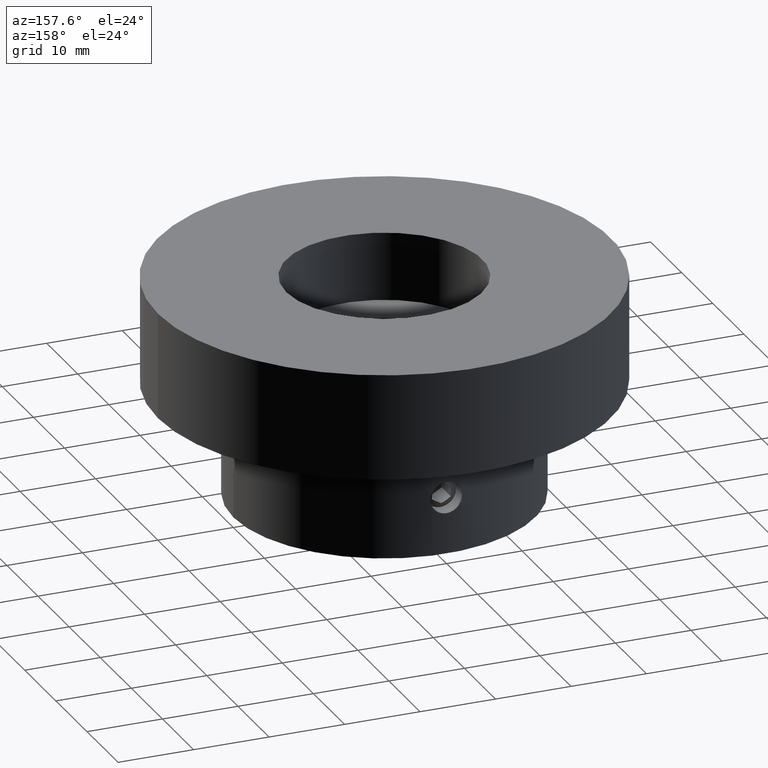
[diagram: clean part render]
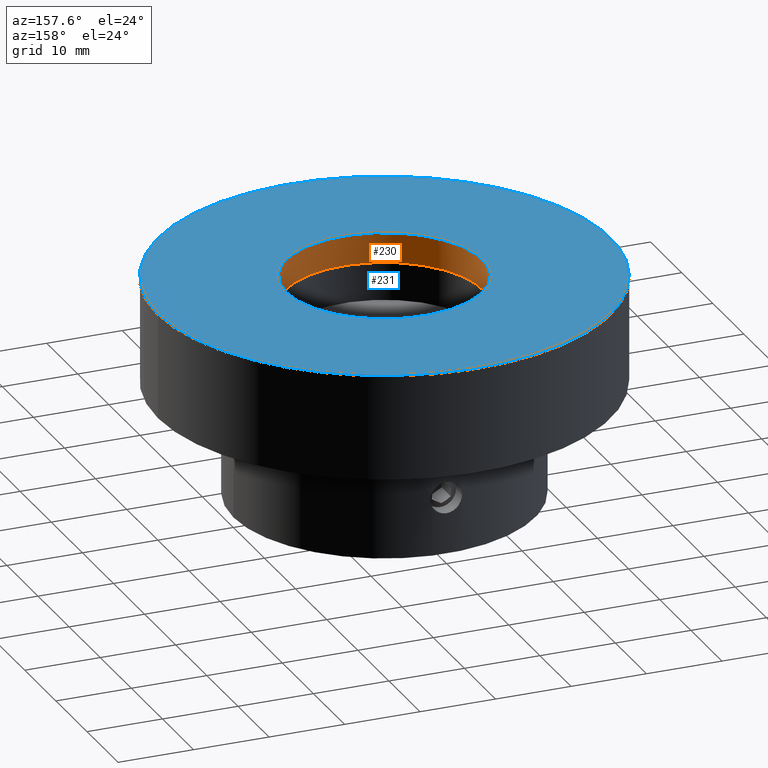
[diagram: same view with the hole feature highlighted: cylindrical wall and planar end face, labeled with their STEP entity ids]
A machine part, auxiliary view. The highlighted faces form one hole feature of diameter 26 mm: the cylindrical wall (entity #230, orange) and its adjacent planar end face (entity #231, blue) — they share a circular edge in the B-rep.
Wall:
#230 = ADVANCED_FACE( '', ( #287, #288 ), #289, .F. );
#287 = FACE_OUTER_BOUND( '', #359, .T. );
#288 = FACE_OUTER_BOUND( '', #360, .T. );
#289 = CYLINDRICAL_SURFACE( '', #361, 13.0000000000000 );
#359 = EDGE_LOOP( '', ( #477 ) );
#360 = EDGE_LOOP( '', ( #478 ) );
#361 = AXIS2_PLACEMENT_3D( '', #479, #480, #481 );
#477 = ORIENTED_EDGE( '', *, *, #584, .T. );
#478 = ORIENTED_EDGE( '', *, *, #586, .T. );
#479 = CARTESIAN_POINT( '', ( 3.46944695195361E-015, 0.000000000000000, -19.0000000000000 ) );
#480 = DIRECTION( '', ( -0.000000000000000, 0.000000000000000, -1.00000000000000 ) );
#481 = DIRECTION( '', ( -1.00000000000000, 0.000000000000000, 0.000000000000000 ) );
#584 = EDGE_CURVE( '', #647, #647, #648, .F. );
#586 = EDGE_CURVE( '', #651, #651, #652, .T. );
#647 = VERTEX_POINT( '', #849 );
#648 = CIRCLE( '', #850, 13.0000000000000 );
#651 = VERTEX_POINT( '', #853 );
#652 = CIRCLE( '', #854, 13.0000000000000 );
#849 = CARTESIAN_POINT( '', ( 13.0000000000000, 0.000000000000000, -14.0000000000000 ) );
#850 = AXIS2_PLACEMENT_3D( '', #974, #975, #976 );
#853 = CARTESIAN_POINT( '', ( 13.0000000000000, 0.000000000000000, -10.0000000000000 ) );
#854 = AXIS2_PLACEMENT_3D( '', #980, #981, #982 );
#974 = CARTESIAN_POINT( '', ( 3.46944695195361E-015, 0.000000000000000, -14.0000000000000 ) );
#975 = DIRECTION( '', ( 0.000000000000000, -0.000000000000000, 1.00000000000000 ) );
#976 = DIRECTION( '', ( 1.00000000000000, 0.000000000000000, 0.000000000000000 ) );
#980 = CARTESIAN_POINT( '', ( 3.46944695195361E-015, 0.000000000000000, -10.0000000000000 ) );
#981 = DIRECTION( '', ( 0.000000000000000, -0.000000000000000, 1.00000000000000 ) );
#982 = DIRECTION( '', ( 1.00000000000000, 0.000000000000000, 0.000000000000000 ) );
End face:
#231 = ADVANCED_FACE( '', ( #290, #291 ), #292, .F. );
#290 = FACE_BOUND( '', #362, .T. );
#291 = FACE_OUTER_BOUND( '', #363, .T. );
#292 = PLANE( '', #364 );
#362 = EDGE_LOOP( '', ( #482 ) );
#363 = EDGE_LOOP( '', ( #483 ) );
#364 = AXIS2_PLACEMENT_3D( '', #484, #485, #486 );
#482 = ORIENTED_EDGE( '', *, *, #586, .F. );
#483 = ORIENTED_EDGE( '', *, *, #585, .T. );
#484 = CARTESIAN_POINT( '', ( 0.000000000000000, 0.000000000000000, -10.0000000000000 ) );
#485 = DIRECTION( '', ( 0.000000000000000, 0.000000000000000, -1.00000000000000 ) );
#486 = DIRECTION( '', ( 1.00000000000000, 0.000000000000000, 0.000000000000000 ) );
#585 = EDGE_CURVE( '', #649, #649, #650, .T. );
#586 = EDGE_CURVE( '', #651, #651, #652, .T. );
#649 = VERTEX_POINT( '', #851 );
#650 = CIRCLE( '', #852, 30.0000000000000 );
#651 = VERTEX_POINT( '', #853 );
#652 = CIRCLE( '', #854, 13.0000000000000 );
#851 = CARTESIAN_POINT( '', ( 30.0000000000000, 0.000000000000000, -10.0000000000000 ) );
#852 = AXIS2_PLACEMENT_3D( '', #977, #978, #979 );
#853 = CARTESIAN_POINT( '', ( 13.0000000000000, 0.000000000000000, -10.0000000000000 ) );
#854 = AXIS2_PLACEMENT_3D( '', #980, #981, #982 );
#977 = CARTESIAN_POINT( '', ( 0.000000000000000, 0.000000000000000, -10.0000000000000 ) );
#978 = DIRECTION( '', ( 0.000000000000000, -0.000000000000000, 1.00000000000000 ) );
#979 = DIRECTION( '', ( 1.00000000000000, 0.000000000000000, 0.000000000000000 ) );
#980 = CARTESIAN_POINT( '', ( 3.46944695195361E-015, 0.000000000000000, -10.0000000000000 ) );
#981 = DIRECTION( '', ( 0.000000000000000, -0.000000000000000, 1.00000000000000 ) );
#982 = DIRECTION( '', ( 1.00000000000000, 0.000000000000000, 0.000000000000000 ) );